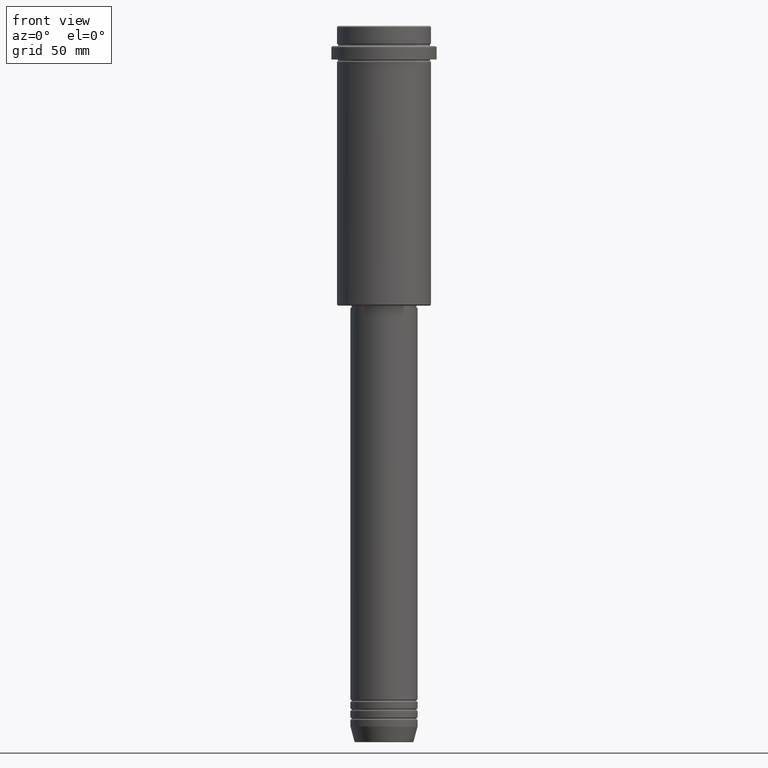
[diagram: clean part render]
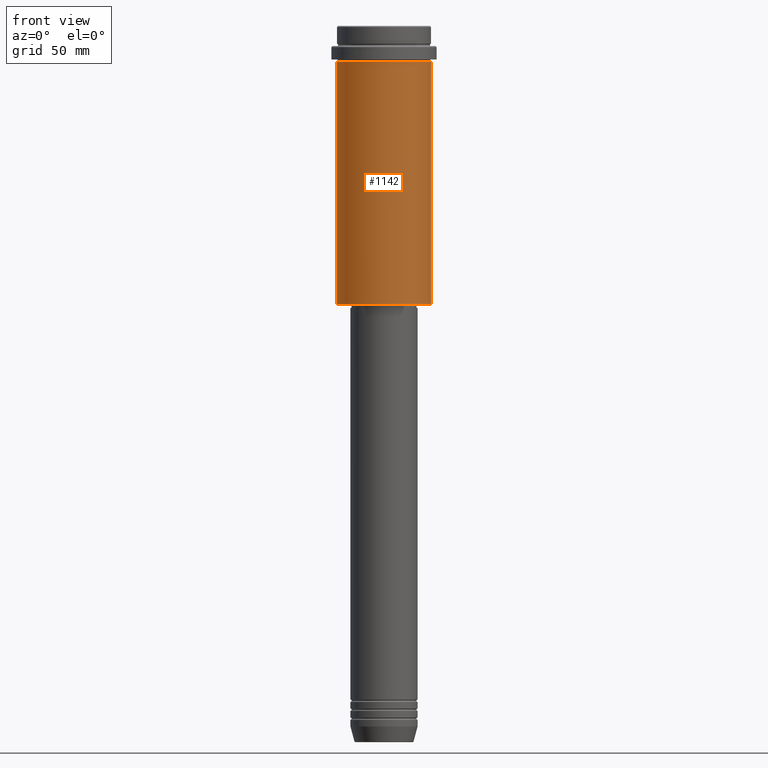
[diagram: same view with one face highlighted and labeled with its STEP entity id]
A machine part, front view. The second image highlights one B-rep face of the part: STEP entity #1142.
In plain terms, the highlighted cylindrical surface (partial cylindrical patch) has radius 21 mm, axis along (-0, -0, 1).
Its self-contained STEP definition (entity closure, byte-faithful):
#28 = EDGE_CURVE ( 'NONE', #831, #1359, #238, .T. ) ;
#46 = DIRECTION ( 'NONE',  ( -0.000000000000000000, -0.000000000000000000, 1.000000000000000000 ) ) ;
#57 = EDGE_CURVE ( 'NONE', #351, #1254, #128, .T. ) ;
#118 = CIRCLE ( 'NONE', #1055, 20.99999999999999645 ) ;
#128 = LINE ( 'NONE', #356, #621 ) ;
#238 = LINE ( 'NONE', #1320, #1233 ) ;
#254 = CARTESIAN_POINT ( 'NONE',  ( 0.000000000000000000, 0.000000000000000000, -124.4999999999999005 ) ) ;
#276 = EDGE_CURVE ( 'NONE', #1254, #1359, #1215, .T. ) ;
#307 = DIRECTION ( 'NONE',  ( 1.000000000000000000, 0.000000000000000000, 0.000000000000000000 ) ) ;
#351 = VERTEX_POINT ( 'NONE', #852 ) ;
#356 = CARTESIAN_POINT ( 'NONE',  ( -20.99999999999999645, 2.571758278209441267E-15, 0.000000000000000000 ) ) ;
#485 = DIRECTION ( 'NONE',  ( -1.000000000000000000, 0.000000000000000000, 0.000000000000000000 ) ) ;
#496 = ORIENTED_EDGE ( 'NONE', *, *, #276, .F. ) ;
#524 = CARTESIAN_POINT ( 'NONE',  ( 20.99999999999999645, 0.000000000000000000, -16.00000000000000355 ) ) ;
#597 = AXIS2_PLACEMENT_3D ( 'NONE', #1292, #841, #307 ) ;
#598 = ORIENTED_EDGE ( 'NONE', *, *, #1180, .T. ) ;
#621 = VECTOR ( 'NONE', #1095, 1000.000000000000000 ) ;
#666 = DIRECTION ( 'NONE',  ( -0.000000000000000000, -0.000000000000000000, 1.000000000000000000 ) ) ;
#702 = CARTESIAN_POINT ( 'NONE',  ( 0.000000000000000000, 0.000000000000000000, 0.000000000000000000 ) ) ;
#788 = AXIS2_PLACEMENT_3D ( 'NONE', #702, #46, #1342 ) ;
#815 = DIRECTION ( 'NONE',  ( -0.000000000000000000, -0.000000000000000000, 1.000000000000000000 ) ) ;
#831 = VERTEX_POINT ( 'NONE', #1360 ) ;
#841 = DIRECTION ( 'NONE',  ( -0.000000000000000000, -0.000000000000000000, 1.000000000000000000 ) ) ;
#847 = ORIENTED_EDGE ( 'NONE', *, *, #57, .F. ) ;
#852 = CARTESIAN_POINT ( 'NONE',  ( -20.99999999999999645, 2.571758278209441267E-15, -124.4999999999999005 ) ) ;
#908 = CARTESIAN_POINT ( 'NONE',  ( -20.99999999999999645, 2.571758278209441267E-15, -16.00000000000000355 ) ) ;
#909 = ORIENTED_EDGE ( 'NONE', *, *, #28, .T. ) ;
#1055 = AXIS2_PLACEMENT_3D ( 'NONE', #254, #815, #485 ) ;
#1095 = DIRECTION ( 'NONE',  ( -0.000000000000000000, -0.000000000000000000, 1.000000000000000000 ) ) ;
#1122 = CYLINDRICAL_SURFACE ( 'NONE', #788, 20.99999999999999645 ) ;
#1142 = ADVANCED_FACE ( 'NONE', ( #1189 ), #1122, .T. ) ;
#1180 = EDGE_CURVE ( 'NONE', #351, #831, #118, .T. ) ;
#1189 = FACE_OUTER_BOUND ( 'NONE', #1416, .T. ) ;
#1215 = CIRCLE ( 'NONE', #597, 20.99999999999999645 ) ;
#1233 = VECTOR ( 'NONE', #666, 1000.000000000000000 ) ;
#1254 = VERTEX_POINT ( 'NONE', #908 ) ;
#1292 = CARTESIAN_POINT ( 'NONE',  ( 0.000000000000000000, 0.000000000000000000, -16.00000000000000355 ) ) ;
#1320 = CARTESIAN_POINT ( 'NONE',  ( 20.99999999999999645, 0.000000000000000000, 0.000000000000000000 ) ) ;
#1342 = DIRECTION ( 'NONE',  ( 1.000000000000000000, 0.000000000000000000, 0.000000000000000000 ) ) ;
#1359 = VERTEX_POINT ( 'NONE', #524 ) ;
#1360 = CARTESIAN_POINT ( 'NONE',  ( 20.99999999999999645, 0.000000000000000000, -124.4999999999999005 ) ) ;
#1416 = EDGE_LOOP ( 'NONE', ( #847, #598, #909, #496 ) ) ;